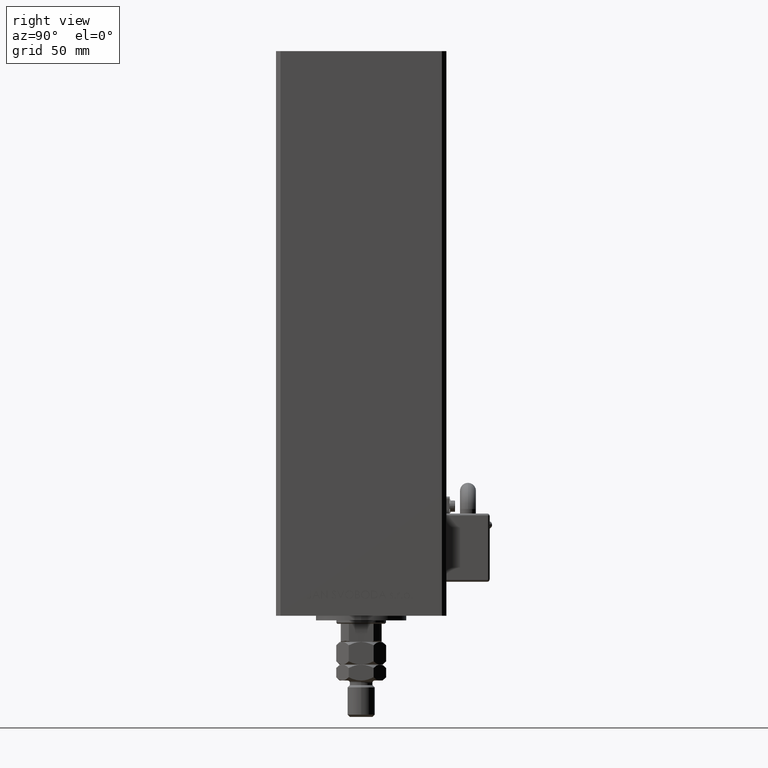
[diagram: clean part render]
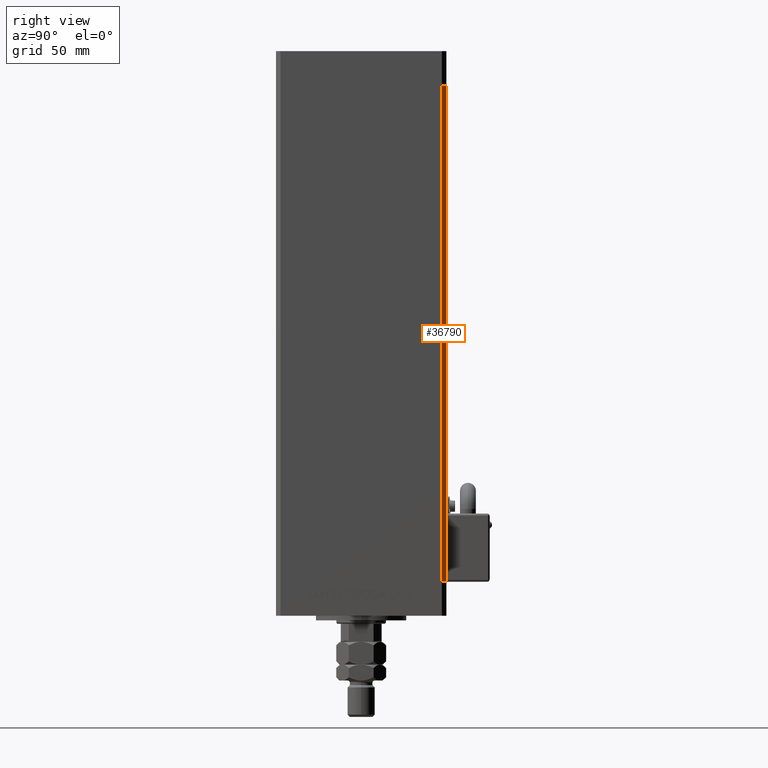
[diagram: same view with one face highlighted and labeled with its STEP entity id]
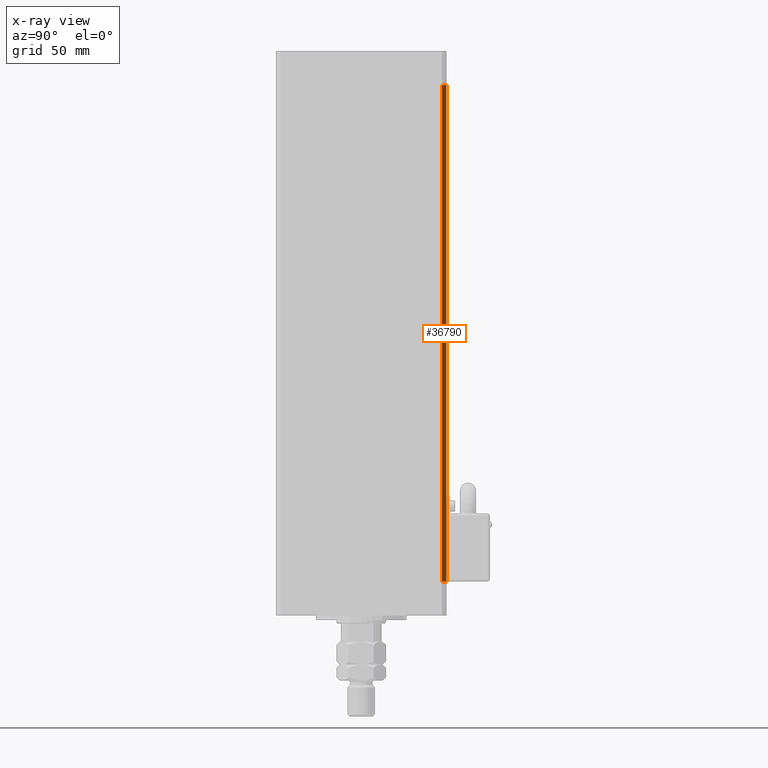
[diagram: x-ray of the same camera — body ghosted, the highlighted face saturated]
A machine part, right view. The second image highlights one B-rep face of the part: STEP entity #36790.
The next image is the same camera in x-ray: the body ghosted, the highlighted face saturated — about 0% of this face is hidden behind the body in this view.
In plain terms, the highlighted planar face has unit normal (0.7071, 0.7071, 0).
Its self-contained STEP definition (entity closure, byte-faithful):
#258 = LINE ( 'NONE', #44651, #28056 ) ;
#3636 = ORIENTED_EDGE ( 'NONE', *, *, #40272, .F. ) ;
#7420 = VECTOR ( 'NONE', #17291, 1000.000000000000000 ) ;
#11278 = ORIENTED_EDGE ( 'NONE', *, *, #45334, .T. ) ;
#15181 = LINE ( 'NONE', #44144, #21034 ) ;
#16206 = LINE ( 'NONE', #32991, #7420 ) ;
#16215 = DIRECTION ( 'NONE',  ( 0.7071067811865500152, -0.7071067811865451302, 0.000000000000000000 ) ) ;
#17254 = FACE_OUTER_BOUND ( 'NONE', #29824, .T. ) ;
#17291 = DIRECTION ( 'NONE',  ( -0.000000000000000000, -0.000000000000000000, -1.000000000000000000 ) ) ;
#21034 = VECTOR ( 'NONE', #25450, 1000.000000000000000 ) ;
#21308 = CARTESIAN_POINT ( 'NONE',  ( 40.50000000000000000, 37.50000000000000711, 218.5000000000000000 ) ) ;
#23121 = EDGE_CURVE ( 'NONE', #31401, #40909, #16206, .T. ) ;
#23504 = CARTESIAN_POINT ( 'NONE',  ( 40.50000000000000000, 37.50000000000000711, 0.000000000000000000 ) ) ;
#23773 = LINE ( 'NONE', #23504, #40672 ) ;
#24034 = DIRECTION ( 'NONE',  ( 0.7071067811865500152, -0.7071067811865451302, 0.000000000000000000 ) ) ;
#25450 = DIRECTION ( 'NONE',  ( -0.000000000000000000, -0.000000000000000000, -1.000000000000000000 ) ) ;
#28056 = VECTOR ( 'NONE', #16215, 1000.000000000000114 ) ;
#29824 = EDGE_LOOP ( 'NONE', ( #3636, #34623, #44333, #11278 ) ) ;
#31401 = VERTEX_POINT ( 'NONE', #34478 ) ;
#32991 = CARTESIAN_POINT ( 'NONE',  ( 40.50000000000000000, 37.50000000000000711, 218.5000000000000000 ) ) ;
#34478 = CARTESIAN_POINT ( 'NONE',  ( 40.50000000000000000, 37.50000000000000711, 218.5000000000000000 ) ) ;
#34569 = DIRECTION ( 'NONE',  ( -0.7071067811865500152, 0.7071067811865450192, 0.000000000000000000 ) ) ;
#34623 = ORIENTED_EDGE ( 'NONE', *, *, #23121, .F. ) ;
#36195 = CARTESIAN_POINT ( 'NONE',  ( 42.50000000000000711, 35.50000000000001421, 0.000000000000000000 ) ) ;
#36790 = ADVANCED_FACE ( 'NONE', ( #17254 ), #46203, .T. ) ;
#38090 = DIRECTION ( 'NONE',  ( 0.7071067811865450192, 0.7071067811865500152, -0.000000000000000000 ) ) ;
#40272 = EDGE_CURVE ( 'NONE', #40909, #42558, #23773, .T. ) ;
#40672 = VECTOR ( 'NONE', #24034, 1000.000000000000114 ) ;
#40909 = VERTEX_POINT ( 'NONE', #49875 ) ;
#42558 = VERTEX_POINT ( 'NONE', #36195 ) ;
#44144 = CARTESIAN_POINT ( 'NONE',  ( 42.50000000000000711, 35.50000000000001421, 218.5000000000000000 ) ) ;
#44333 = ORIENTED_EDGE ( 'NONE', *, *, #48992, .T. ) ;
#44651 = CARTESIAN_POINT ( 'NONE',  ( 40.50000000000000000, 37.50000000000000711, 218.5000000000000000 ) ) ;
#45334 = EDGE_CURVE ( 'NONE', #50017, #42558, #15181, .T. ) ;
#46203 = PLANE ( 'NONE',  #48419 ) ;
#46777 = CARTESIAN_POINT ( 'NONE',  ( 42.50000000000000711, 35.50000000000001421, 218.5000000000000000 ) ) ;
#48419 = AXIS2_PLACEMENT_3D ( 'NONE', #21308, #38090, #34569 ) ;
#48992 = EDGE_CURVE ( 'NONE', #31401, #50017, #258, .T. ) ;
#49875 = CARTESIAN_POINT ( 'NONE',  ( 40.50000000000000000, 37.50000000000000711, 0.000000000000000000 ) ) ;
#50017 = VERTEX_POINT ( 'NONE', #46777 ) ;